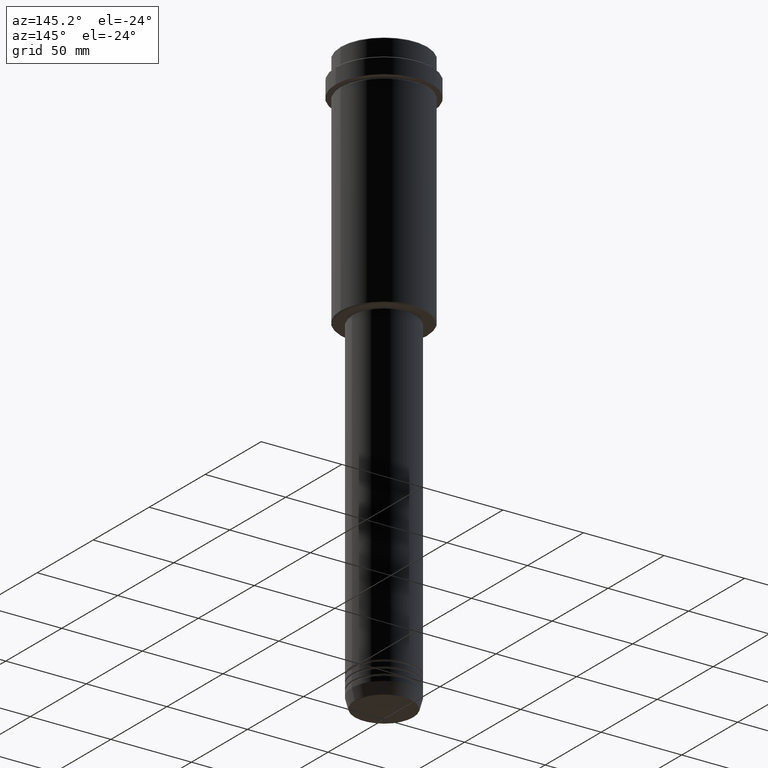
[diagram: clean part render]
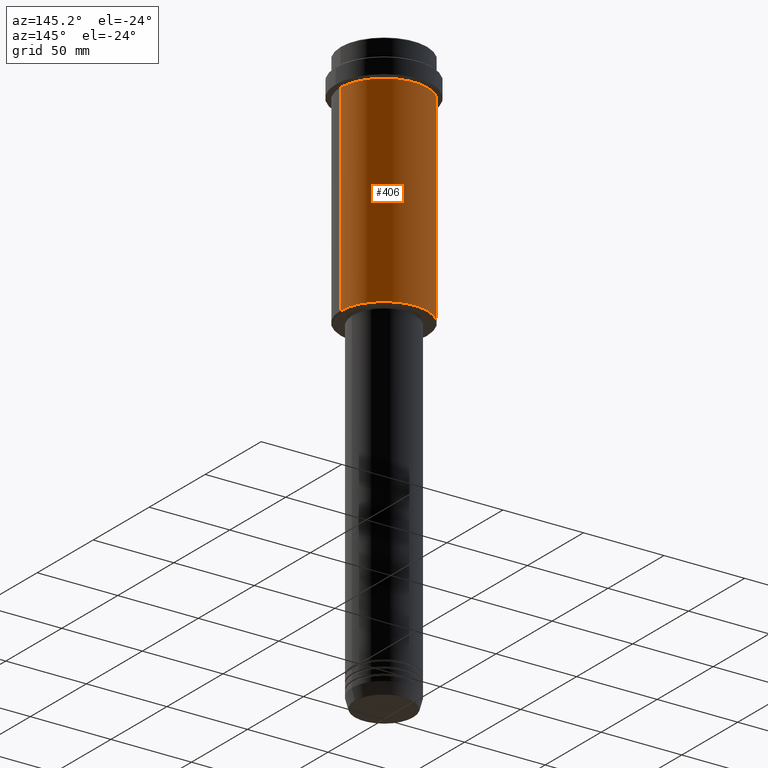
[diagram: same view with one face highlighted and labeled with its STEP entity id]
A machine part, auxiliary view. The second image highlights one B-rep face of the part: STEP entity #406.
In plain terms, the highlighted cylindrical surface (partial cylindrical patch) has radius 27 mm, axis along (-0, -0, 1).
Its self-contained STEP definition (entity closure, byte-faithful):
#4 = FACE_OUTER_BOUND ( 'NONE', #579, .T. ) ;
#5 = VERTEX_POINT ( 'NONE', #1189 ) ;
#13 = CYLINDRICAL_SURFACE ( 'NONE', #399, 26.99999999999999645 ) ;
#72 = CARTESIAN_POINT ( 'NONE',  ( 26.99999999999999645, 0.000000000000000000, -147.5000000000001421 ) ) ;
#81 = AXIS2_PLACEMENT_3D ( 'NONE', #134, #1205, #441 ) ;
#134 = CARTESIAN_POINT ( 'NONE',  ( 0.000000000000000000, 0.000000000000000000, -147.5000000000001421 ) ) ;
#140 = ORIENTED_EDGE ( 'NONE', *, *, #396, .T. ) ;
#222 = CARTESIAN_POINT ( 'NONE',  ( 26.99999999999999645, 0.000000000000000000, 0.000000000000000000 ) ) ;
#355 = VECTOR ( 'NONE', #1183, 1000.000000000000000 ) ;
#356 = CIRCLE ( 'NONE', #936, 26.99999999999999645 ) ;
#396 = EDGE_CURVE ( 'NONE', #1336, #5, #465, .T. ) ;
#399 = AXIS2_PLACEMENT_3D ( 'NONE', #433, #966, #642 ) ;
#406 = ADVANCED_FACE ( 'NONE', ( #4 ), #13, .T. ) ;
#421 = EDGE_CURVE ( 'NONE', #1230, #1336, #1363, .T. ) ;
#433 = CARTESIAN_POINT ( 'NONE',  ( 0.000000000000000000, 0.000000000000000000, 0.000000000000000000 ) ) ;
#441 = DIRECTION ( 'NONE',  ( -1.000000000000000000, 0.000000000000000000, 0.000000000000000000 ) ) ;
#465 = LINE ( 'NONE', #972, #355 ) ;
#491 = EDGE_CURVE ( 'NONE', #1230, #975, #861, .T. ) ;
#579 = EDGE_LOOP ( 'NONE', ( #1411, #140, #896, #612 ) ) ;
#612 = ORIENTED_EDGE ( 'NONE', *, *, #491, .F. ) ;
#642 = DIRECTION ( 'NONE',  ( 1.000000000000000000, 0.000000000000000000, 0.000000000000000000 ) ) ;
#677 = EDGE_CURVE ( 'NONE', #975, #5, #356, .T. ) ;
#793 = CARTESIAN_POINT ( 'NONE',  ( 26.99999999999999645, 0.000000000000000000, -23.00000000000000000 ) ) ;
#799 = CARTESIAN_POINT ( 'NONE',  ( 0.000000000000000000, 0.000000000000000000, -23.00000000000000000 ) ) ;
#861 = LINE ( 'NONE', #222, #934 ) ;
#896 = ORIENTED_EDGE ( 'NONE', *, *, #677, .F. ) ;
#934 = VECTOR ( 'NONE', #1175, 1000.000000000000000 ) ;
#936 = AXIS2_PLACEMENT_3D ( 'NONE', #799, #1235, #941 ) ;
#941 = DIRECTION ( 'NONE',  ( 1.000000000000000000, 0.000000000000000000, 0.000000000000000000 ) ) ;
#966 = DIRECTION ( 'NONE',  ( -0.000000000000000000, -0.000000000000000000, 1.000000000000000000 ) ) ;
#972 = CARTESIAN_POINT ( 'NONE',  ( -26.99999999999999645, 3.306546357697853339E-15, 0.000000000000000000 ) ) ;
#975 = VERTEX_POINT ( 'NONE', #793 ) ;
#1175 = DIRECTION ( 'NONE',  ( -0.000000000000000000, -0.000000000000000000, 1.000000000000000000 ) ) ;
#1183 = DIRECTION ( 'NONE',  ( -0.000000000000000000, -0.000000000000000000, 1.000000000000000000 ) ) ;
#1189 = CARTESIAN_POINT ( 'NONE',  ( -26.99999999999999645, 3.306546357697853339E-15, -23.00000000000000000 ) ) ;
#1205 = DIRECTION ( 'NONE',  ( -0.000000000000000000, -0.000000000000000000, 1.000000000000000000 ) ) ;
#1230 = VERTEX_POINT ( 'NONE', #72 ) ;
#1235 = DIRECTION ( 'NONE',  ( -0.000000000000000000, -0.000000000000000000, 1.000000000000000000 ) ) ;
#1336 = VERTEX_POINT ( 'NONE', #1400 ) ;
#1363 = CIRCLE ( 'NONE', #81, 26.99999999999999645 ) ;
#1400 = CARTESIAN_POINT ( 'NONE',  ( -26.99999999999999645, 3.306546357697853339E-15, -147.5000000000001421 ) ) ;
#1411 = ORIENTED_EDGE ( 'NONE', *, *, #421, .T. ) ;